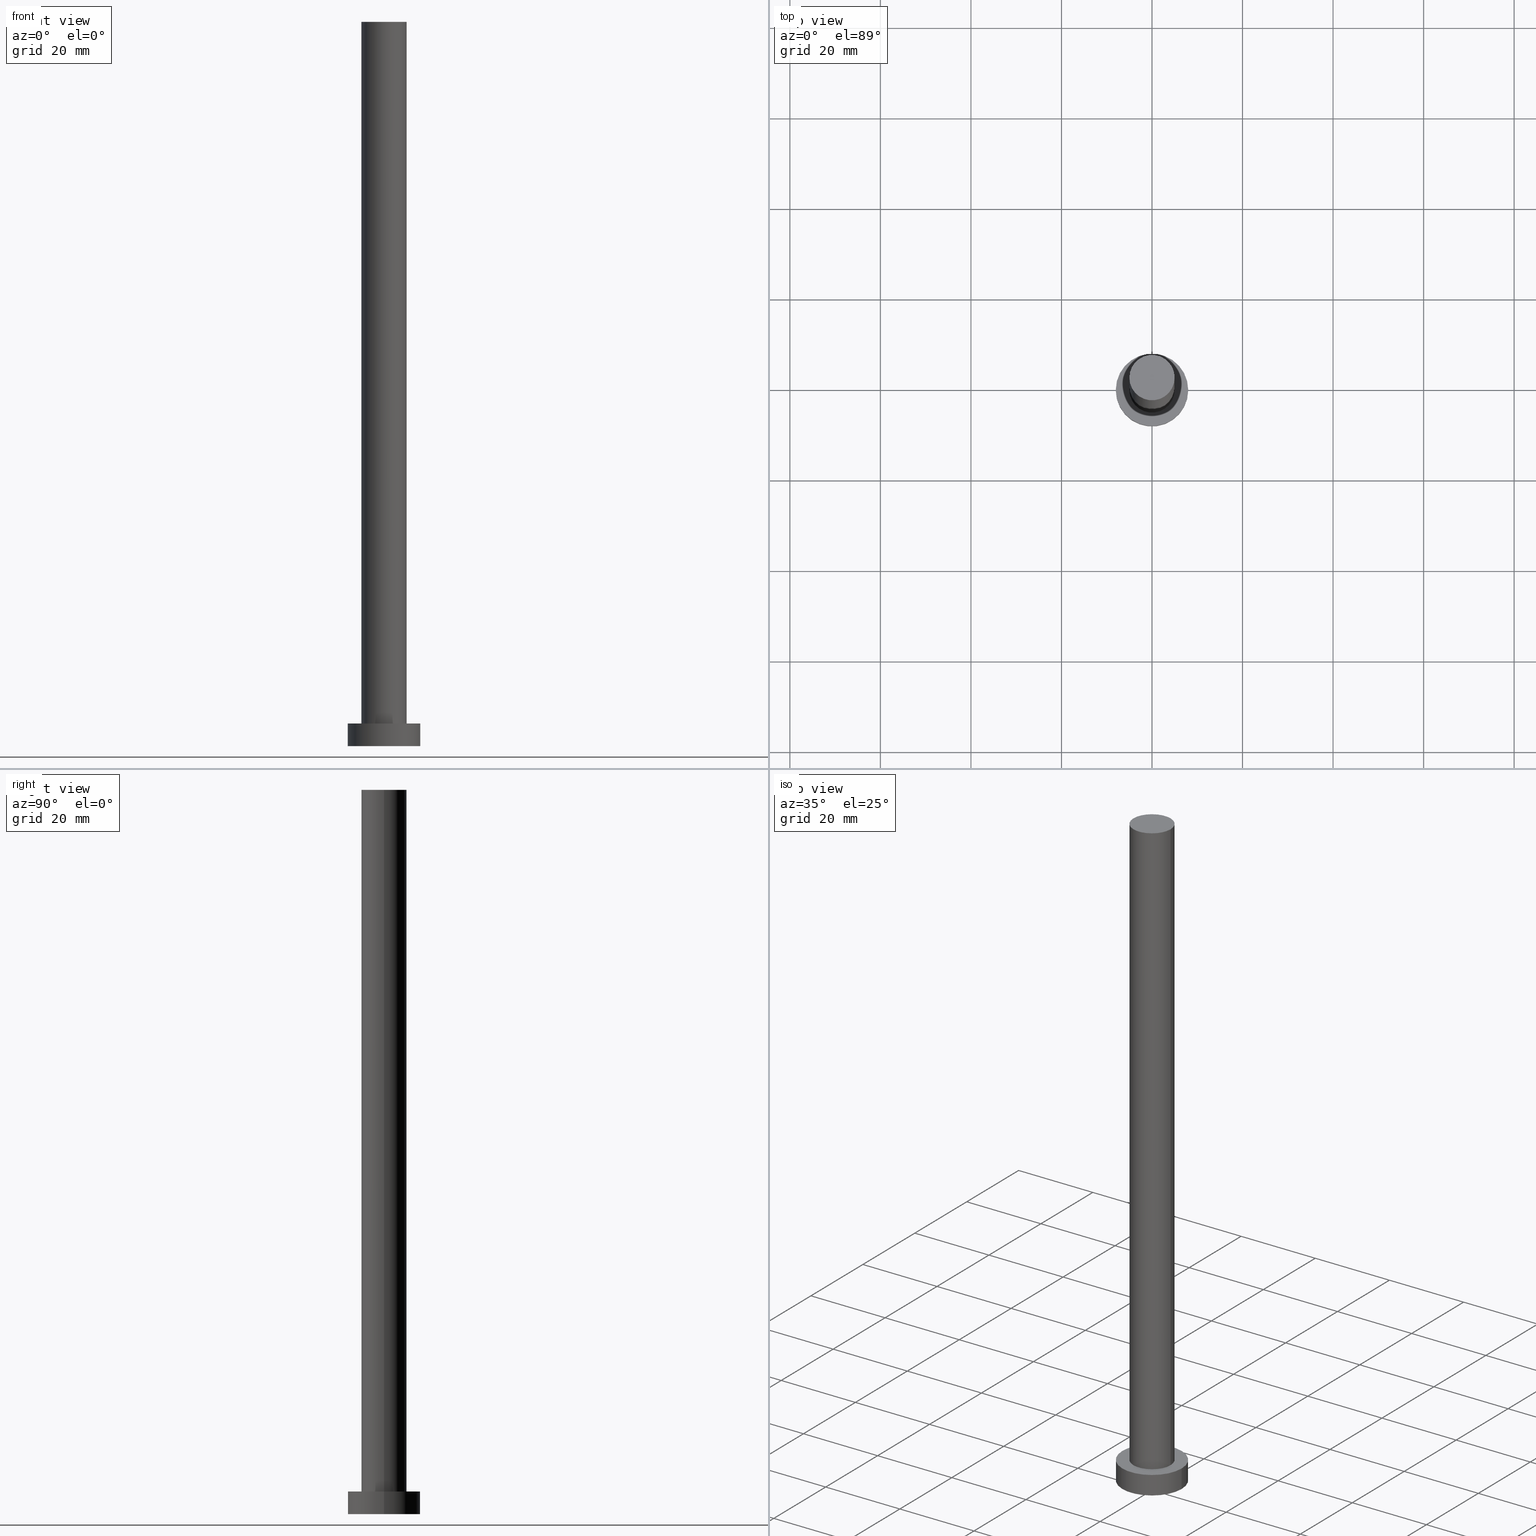
[diagram: canonical four-view strip — front | top / right | iso, engineering-drawing reading convention]
A machine part, canonical four-view strip (front | top / right | iso — engineering-drawing reading convention). The complete STEP part file that produces these views, byte-faithful:
ISO-10303-21;
HEADER;
FILE_DESCRIPTION (( 'STEP AP203' ),
    '1' );
FILE_NAME ('e284.STEP',
    '2023-02-12T11:01:05',
    ( '' ),
    ( '' ),
    'SwSTEP 2.0',
    'SolidWorks 2019',
    '' );
FILE_SCHEMA (( 'CONFIG_CONTROL_DESIGN' ));
ENDSEC;

DATA;
#1 = CC_DESIGN_PERSON_AND_ORGANIZATION_ASSIGNMENT ( #224, #116, ( #194 ) ) ;
#2 = PRODUCT ( 'e284', 'e284', '', ( #5 ) ) ;
#3 = VERTEX_POINT ( 'NONE', #101 ) ;
#4 = CARTESIAN_POINT ( 'NONE',  ( 5.000000000000000000, 6.123233995736766282E-16, 160.0000000000000000 ) ) ;
#5 = MECHANICAL_CONTEXT ( 'NONE', #144, 'mechanical' ) ;
#6 = CC_DESIGN_SECURITY_CLASSIFICATION ( #210, ( #194 ) ) ;
#7 = FACE_OUTER_BOUND ( 'NONE', #87, .T. ) ;
#8 = DIRECTION ( 'NONE',  ( 1.000000000000000000, 0.000000000000000000, -0.000000000000000000 ) ) ;
#9 = DIRECTION ( 'NONE',  ( 1.000000000000000000, 0.000000000000000000, 0.000000000000000000 ) ) ;
#10 = VERTEX_POINT ( 'NONE', #50 ) ;
#11 = CARTESIAN_POINT ( 'NONE',  ( 5.000000000000000000, 6.123233995736766282E-16, 5.000000000000000000 ) ) ;
#12 = DIRECTION ( 'NONE',  ( 0.000000000000000000, 0.000000000000000000, 1.000000000000000000 ) ) ;
#13 = EDGE_CURVE ( 'NONE', #59, #198, #152, .T. ) ;
#14 = DATE_AND_TIME ( #115, #120 ) ;
#15 = PERSON_AND_ORGANIZATION ( #203, #17 ) ;
#16 = PERSON_AND_ORGANIZATION_ROLE ( 'creator' ) ;
#17 = ORGANIZATION ( 'NEUR�EN�', 'NEUR�EN�', '' ) ;
#18 = ORIENTED_EDGE ( 'NONE', *, *, #166, .F. ) ;
#19 = CARTESIAN_POINT ( 'NONE',  ( 0.000000000000000000, 0.000000000000000000, 5.000000000000000000 ) ) ;
#20 = CIRCLE ( 'NONE', #96, 8.000000000000000000 ) ;
#21 = DIRECTION ( 'NONE',  ( 1.000000000000000000, 0.000000000000000000, 0.000000000000000000 ) ) ;
#22 = ORIENTED_EDGE ( 'NONE', *, *, #159, .F. ) ;
#23 = CIRCLE ( 'NONE', #64, 5.000000000000000000 ) ;
#24 = CYLINDRICAL_SURFACE ( 'NONE', #70, 8.000000000000000000 ) ;
#25 = FACE_OUTER_BOUND ( 'NONE', #80, .T. ) ;
#26 = DIRECTION ( 'NONE',  ( 0.000000000000000000, 0.000000000000000000, 1.000000000000000000 ) ) ;
#27 = CARTESIAN_POINT ( 'NONE',  ( 0.000000000000000000, 0.000000000000000000, 0.000000000000000000 ) ) ;
#28 = VECTOR ( 'NONE', #148, 1000.000000000000000 ) ;
#29 =( NAMED_UNIT ( * ) PLANE_ANGLE_UNIT ( ) SI_UNIT ( $, .RADIAN. ) );
#30 = COORDINATED_UNIVERSAL_TIME_OFFSET ( 1, 0, .AHEAD. ) ;
#31 = EDGE_CURVE ( 'NONE', #109, #10, #209, .T. ) ;
#32 = CARTESIAN_POINT ( 'NONE',  ( 0.000000000000000000, 0.000000000000000000, 160.0000000000000000 ) ) ;
#33 = DIRECTION ( 'NONE',  ( 0.000000000000000000, 0.000000000000000000, 1.000000000000000000 ) ) ;
#34 = DIRECTION ( 'NONE',  ( -1.000000000000000000, 0.000000000000000000, 0.000000000000000000 ) ) ;
#35 = ORIENTED_EDGE ( 'NONE', *, *, #58, .T. ) ;
#36 = APPROVAL_STATUS ( 'not_yet_approved' ) ;
#37 = ORIENTED_EDGE ( 'NONE', *, *, #159, .T. ) ;
#38 = AXIS2_PLACEMENT_3D ( 'NONE', #238, #12, #160 ) ;
#39 = AXIS2_PLACEMENT_3D ( 'NONE', #234, #128, #111 ) ;
#40 = APPROVAL_ROLE ( '' ) ;
#41 = ORIENTED_EDGE ( 'NONE', *, *, #62, .T. ) ;
#42 = PERSON_AND_ORGANIZATION ( #203, #17 ) ;
#43 = AXIS2_PLACEMENT_3D ( 'NONE', #32, #249, #200 ) ;
#44 = ADVANCED_FACE ( 'NONE', ( #7 ), #211, .T. ) ;
#45 = FACE_OUTER_BOUND ( 'NONE', #139, .T. ) ;
#46 = CC_DESIGN_APPROVAL ( #105, ( #150 ) ) ;
#47 = LINE ( 'NONE', #97, #49 ) ;
#48 = CARTESIAN_POINT ( 'NONE',  ( 0.000000000000000000, 0.000000000000000000, 5.000000000000000000 ) ) ;
#49 = VECTOR ( 'NONE', #66, 1000.000000000000000 ) ;
#50 = CARTESIAN_POINT ( 'NONE',  ( 8.000000000000000000, 9.797174393178825657E-16, 0.000000000000000000 ) ) ;
#51 = ORIENTED_EDGE ( 'NONE', *, *, #241, .F. ) ;
#52 = DIRECTION ( 'NONE',  ( 1.000000000000000000, 0.000000000000000000, 0.000000000000000000 ) ) ;
#53 = COORDINATED_UNIVERSAL_TIME_OFFSET ( 1, 0, .AHEAD. ) ;
#54 = DIRECTION ( 'NONE',  ( 1.000000000000000000, 0.000000000000000000, 0.000000000000000000 ) ) ;
#55 = PERSON_AND_ORGANIZATION ( #203, #17 ) ;
#56 = LOCAL_TIME ( 12, 1, 5.000000000000000000, #53 ) ;
#57 = ORIENTED_EDGE ( 'NONE', *, *, #131, .F. ) ;
#58 = EDGE_CURVE ( 'NONE', #198, #59, #122, .T. ) ;
#59 = VERTEX_POINT ( 'NONE', #77 ) ;
#60 = VECTOR ( 'NONE', #226, 1000.000000000000000 ) ;
#61 = DATE_AND_TIME ( #79, #117 ) ;
#62 = EDGE_CURVE ( 'NONE', #109, #78, #186, .T. ) ;
#63 = DESIGN_CONTEXT ( 'detailed design', #232, 'design' ) ;
#64 = AXIS2_PLACEMENT_3D ( 'NONE', #48, #185, #21 ) ;
#65 = CC_DESIGN_PERSON_AND_ORGANIZATION_ASSIGNMENT ( #42, #205, ( #194 ) ) ;
#66 = DIRECTION ( 'NONE',  ( -0.000000000000000000, -0.000000000000000000, -1.000000000000000000 ) ) ;
#67 = ORIENTED_EDGE ( 'NONE', *, *, #31, .F. ) ;
#68 = ORIENTED_EDGE ( 'NONE', *, *, #181, .F. ) ;
#69 = DIRECTION ( 'NONE',  ( 0.000000000000000000, 0.000000000000000000, 1.000000000000000000 ) ) ;
#70 = AXIS2_PLACEMENT_3D ( 'NONE', #19, #85, #243 ) ;
#71 = DIRECTION ( 'NONE',  ( -1.000000000000000000, 0.000000000000000000, 0.000000000000000000 ) ) ;
#72 = VECTOR ( 'NONE', #173, 1000.000000000000000 ) ;
#73 = DIRECTION ( 'NONE',  ( 0.000000000000000000, 0.000000000000000000, 1.000000000000000000 ) ) ;
#74 = AXIS2_PLACEMENT_3D ( 'NONE', #239, #33, #140 ) ;
#75 = PERSON_AND_ORGANIZATION ( #203, #17 ) ;
#76 = APPROVAL_PERSON_ORGANIZATION ( #221, #105, #40 ) ;
#77 = CARTESIAN_POINT ( 'NONE',  ( -5.000000000000000000, 0.000000000000000000, 160.0000000000000000 ) ) ;
#78 = VERTEX_POINT ( 'NONE', #138 ) ;
#79 = CALENDAR_DATE ( 2023, 12, 2 ) ;
#80 = EDGE_LOOP ( 'NONE', ( #89, #217, #202, #123 ) ) ;
#81 = AXIS2_PLACEMENT_3D ( 'NONE', #27, #156, #233 ) ;
#82 = APPROVAL ( #36, 'NEUR�EN�' ) ;
#83 = CARTESIAN_POINT ( 'NONE',  ( 0.000000000000000000, 0.000000000000000000, 160.0000000000000000 ) ) ;
#84 = CARTESIAN_POINT ( 'NONE',  ( 0.000000000000000000, 0.000000000000000000, 5.000000000000000000 ) ) ;
#85 = DIRECTION ( 'NONE',  ( -0.000000000000000000, -0.000000000000000000, -1.000000000000000000 ) ) ;
#86 = CARTESIAN_POINT ( 'NONE',  ( -5.000000000000000000, 0.000000000000000000, 5.000000000000000000 ) ) ;
#87 = EDGE_LOOP ( 'NONE', ( #157, #172, #133, #68 ) ) ;
#88 = COORDINATED_UNIVERSAL_TIME_OFFSET ( 1, 0, .AHEAD. ) ;
#89 = ORIENTED_EDGE ( 'NONE', *, *, #175, .F. ) ;
#90 = PERSON_AND_ORGANIZATION ( #203, #17 ) ;
#91 = ADVANCED_FACE ( 'NONE', ( #25 ), #106, .T. ) ;
#92 = DIRECTION ( 'NONE',  ( -0.000000000000000000, -0.000000000000000000, -1.000000000000000000 ) ) ;
#93 = EDGE_LOOP ( 'NONE', ( #146, #35 ) ) ;
#94 = COORDINATED_UNIVERSAL_TIME_OFFSET ( 1, 0, .AHEAD. ) ;
#95 = LINE ( 'NONE', #4, #60 ) ;
#96 = AXIS2_PLACEMENT_3D ( 'NONE', #250, #69, #52 ) ;
#97 = CARTESIAN_POINT ( 'NONE',  ( -5.000000000000000000, 0.000000000000000000, 160.0000000000000000 ) ) ;
#98 = CC_DESIGN_PERSON_AND_ORGANIZATION_ASSIGNMENT ( #55, #16, ( #150 ) ) ;
#99 = ADVANCED_BREP_SHAPE_REPRESENTATION ( 'e284', ( #201, #74 ), #231 ) ;
#100 = CARTESIAN_POINT ( 'NONE',  ( 8.000000000000000000, 9.797174393178825657E-16, 5.000000000000000000 ) ) ;
#101 = CARTESIAN_POINT ( 'NONE',  ( -8.000000000000000000, 0.000000000000000000, 0.000000000000000000 ) ) ;
#102 = CARTESIAN_POINT ( 'NONE',  ( 0.000000000000000000, 0.000000000000000000, 160.0000000000000000 ) ) ;
#103 =( LENGTH_UNIT ( ) NAMED_UNIT ( * ) SI_UNIT ( .MILLI., .METRE. ) );
#104 = AXIS2_PLACEMENT_3D ( 'NONE', #245, #189, #247 ) ;
#105 = APPROVAL ( #223, 'NEUR�EN�' ) ;
#106 = CYLINDRICAL_SURFACE ( 'NONE', #39, 5.000000000000000000 ) ;
#107 = DIRECTION ( 'NONE',  ( 1.000000000000000000, 0.000000000000000000, -0.000000000000000000 ) ) ;
#108 = CARTESIAN_POINT ( 'NONE',  ( -8.000000000000000000, 0.000000000000000000, 5.000000000000000000 ) ) ;
#109 = VERTEX_POINT ( 'NONE', #188 ) ;
#110 = CALENDAR_DATE ( 2023, 12, 2 ) ;
#111 = DIRECTION ( 'NONE',  ( -1.000000000000000000, 0.000000000000000000, 0.000000000000000000 ) ) ;
#112 = APPLICATION_PROTOCOL_DEFINITION ( 'international standard', 'config_control_design', 1994, #232 ) ;
#113 = ORIENTED_EDGE ( 'NONE', *, *, #228, .F. ) ;
#114 = EDGE_LOOP ( 'NONE', ( #67, #51, #37, #137 ) ) ;
#115 = CALENDAR_DATE ( 2023, 12, 2 ) ;
#116 = PERSON_AND_ORGANIZATION_ROLE ( 'creator' ) ;
#117 = LOCAL_TIME ( 12, 1, 5.000000000000000000, #165 ) ;
#118 = APPROVAL_DATE_TIME ( #61, #184 ) ;
#119 = DIRECTION ( 'NONE',  ( 0.000000000000000000, 0.000000000000000000, 1.000000000000000000 ) ) ;
#120 = LOCAL_TIME ( 12, 1, 5.000000000000000000, #88 ) ;
#121 = CARTESIAN_POINT ( 'NONE',  ( 0.000000000000000000, 0.000000000000000000, 5.000000000000000000 ) ) ;
#122 = CIRCLE ( 'NONE', #43, 5.000000000000000000 ) ;
#123 = ORIENTED_EDGE ( 'NONE', *, *, #187, .T. ) ;
#124 = CC_DESIGN_DATE_AND_TIME_ASSIGNMENT ( #177, #251, ( #150 ) ) ;
#125 = ORIENTED_EDGE ( 'NONE', *, *, #187, .F. ) ;
#126 = EDGE_LOOP ( 'NONE', ( #125, #57 ) ) ;
#127 = AXIS2_PLACEMENT_3D ( 'NONE', #121, #26, #107 ) ;
#128 = DIRECTION ( 'NONE',  ( -0.000000000000000000, -0.000000000000000000, -1.000000000000000000 ) ) ;
#129 = APPROVAL_DATE_TIME ( #141, #82 ) ;
#130 = FACE_OUTER_BOUND ( 'NONE', #114, .T. ) ;
#131 = EDGE_CURVE ( 'NONE', #154, #161, #213, .T. ) ;
#132 = DIRECTION ( 'NONE',  ( 0.000000000000000000, 0.000000000000000000, 1.000000000000000000 ) ) ;
#133 = ORIENTED_EDGE ( 'NONE', *, *, #131, .T. ) ;
#134 = AXIS2_PLACEMENT_3D ( 'NONE', #102, #73, #8 ) ;
#135 = APPLICATION_PROTOCOL_DEFINITION ( 'international standard', 'config_control_design', 1994, #144 ) ;
#136 = CALENDAR_DATE ( 2023, 12, 2 ) ;
#137 = ORIENTED_EDGE ( 'NONE', *, *, #228, .T. ) ;
#138 = CARTESIAN_POINT ( 'NONE',  ( -8.000000000000000000, 0.000000000000000000, 5.000000000000000000 ) ) ;
#139 = EDGE_LOOP ( 'NONE', ( #191, #254, #169, #22 ) ) ;
#140 = DIRECTION ( 'NONE',  ( 1.000000000000000000, 0.000000000000000000, 0.000000000000000000 ) ) ;
#141 = DATE_AND_TIME ( #163, #215 ) ;
#142 = APPROVAL_STATUS ( 'not_yet_approved' ) ;
#143 = CC_DESIGN_APPROVAL ( #184, ( #210 ) ) ;
#144 = APPLICATION_CONTEXT ( 'configuration controlled 3d designs of mechanical parts and assemblies' ) ;
#145 = CC_DESIGN_APPROVAL ( #82, ( #194 ) ) ;
#146 = ORIENTED_EDGE ( 'NONE', *, *, #13, .T. ) ;
#147 = DIRECTION ( 'NONE',  ( 0.000000000000000000, 0.000000000000000000, 1.000000000000000000 ) ) ;
#148 = DIRECTION ( 'NONE',  ( -0.000000000000000000, -0.000000000000000000, -1.000000000000000000 ) ) ;
#149 = PLANE ( 'NONE',  #134 ) ;
#150 = PRODUCT_DEFINITION ( 'NEZN�M�', '', #194, #63 ) ;
#151 = FACE_BOUND ( 'NONE', #126, .T. ) ;
#152 = CIRCLE ( 'NONE', #190, 5.000000000000000000 ) ;
#153 = CARTESIAN_POINT ( 'NONE',  ( 0.000000000000000000, 0.000000000000000000, 5.000000000000000000 ) ) ;
#154 = VERTEX_POINT ( 'NONE', #11 ) ;
#155 = PERSON_AND_ORGANIZATION ( #203, #17 ) ;
#156 = DIRECTION ( 'NONE',  ( 0.000000000000000000, 0.000000000000000000, 1.000000000000000000 ) ) ;
#157 = ORIENTED_EDGE ( 'NONE', *, *, #58, .F. ) ;
#158 = PERSON_AND_ORGANIZATION_ROLE ( 'design_owner' ) ;
#159 = EDGE_CURVE ( 'NONE', #78, #3, #197, .T. ) ;
#160 = DIRECTION ( 'NONE',  ( 1.000000000000000000, 0.000000000000000000, 0.000000000000000000 ) ) ;
#161 = VERTEX_POINT ( 'NONE', #86 ) ;
#162 = CC_DESIGN_PERSON_AND_ORGANIZATION_ASSIGNMENT ( #15, #158, ( #2 ) ) ;
#163 = CALENDAR_DATE ( 2023, 12, 2 ) ;
#164 = AXIS2_PLACEMENT_3D ( 'NONE', #83, #246, #71 ) ;
#165 = COORDINATED_UNIVERSAL_TIME_OFFSET ( 1, 0, .AHEAD. ) ;
#166 = EDGE_CURVE ( 'NONE', #10, #3, #248, .T. ) ;
#167 = FACE_OUTER_BOUND ( 'NONE', #219, .T. ) ;
#168 = CIRCLE ( 'NONE', #104, 8.000000000000000000 ) ;
#169 = ORIENTED_EDGE ( 'NONE', *, *, #166, .T. ) ;
#170 = ADVANCED_FACE ( 'NONE', ( #130 ), #195, .T. ) ;
#171 = FACE_OUTER_BOUND ( 'NONE', #93, .T. ) ;
#172 = ORIENTED_EDGE ( 'NONE', *, *, #175, .T. ) ;
#173 = DIRECTION ( 'NONE',  ( -0.000000000000000000, -0.000000000000000000, -1.000000000000000000 ) ) ;
#174 = EDGE_LOOP ( 'NONE', ( #235, #41 ) ) ;
#175 = EDGE_CURVE ( 'NONE', #198, #154, #95, .T. ) ;
#176 = SECURITY_CLASSIFICATION_LEVEL ( 'unclassified' ) ;
#177 = DATE_AND_TIME ( #136, #196 ) ;
#178 = APPROVAL_PERSON_ORGANIZATION ( #90, #82, #179 ) ;
#179 = APPROVAL_ROLE ( '' ) ;
#180 = AXIS2_PLACEMENT_3D ( 'NONE', #84, #92, #34 ) ;
#181 = EDGE_CURVE ( 'NONE', #59, #161, #47, .T. ) ;
#182 = CLOSED_SHELL ( 'NONE', ( #44, #222, #170, #244, #207, #91, #237 ) ) ;
#183 = CARTESIAN_POINT ( 'NONE',  ( 5.000000000000000000, 6.123233995736766282E-16, 160.0000000000000000 ) ) ;
#184 = APPROVAL ( #142, 'NEUR�EN�' ) ;
#185 = DIRECTION ( 'NONE',  ( 0.000000000000000000, 0.000000000000000000, 1.000000000000000000 ) ) ;
#186 = CIRCLE ( 'NONE', #38, 8.000000000000000000 ) ;
#187 = EDGE_CURVE ( 'NONE', #161, #154, #23, .T. ) ;
#188 = CARTESIAN_POINT ( 'NONE',  ( 8.000000000000000000, 9.797174393178825657E-16, 5.000000000000000000 ) ) ;
#189 = DIRECTION ( 'NONE',  ( 0.000000000000000000, 0.000000000000000000, 1.000000000000000000 ) ) ;
#190 = AXIS2_PLACEMENT_3D ( 'NONE', #229, #119, #9 ) ;
#191 = ORIENTED_EDGE ( 'NONE', *, *, #62, .F. ) ;
#192 =( NAMED_UNIT ( * ) SI_UNIT ( $, .STERADIAN. ) SOLID_ANGLE_UNIT ( ) );
#193 = DATE_AND_TIME ( #110, #56 ) ;
#194 = PRODUCT_DEFINITION_FORMATION_WITH_SPECIFIED_SOURCE ( 'LIBOVOLN�', '', #2, .NOT_KNOWN. ) ;
#195 = CYLINDRICAL_SURFACE ( 'NONE', #180, 8.000000000000000000 ) ;
#196 = LOCAL_TIME ( 12, 1, 5.000000000000000000, #94 ) ;
#197 = LINE ( 'NONE', #108, #72 ) ;
#198 = VERTEX_POINT ( 'NONE', #183 ) ;
#199 = PRODUCT_DEFINITION_SHAPE ( 'NONE', 'NONE',  #150 ) ;
#200 = DIRECTION ( 'NONE',  ( 1.000000000000000000, 0.000000000000000000, 0.000000000000000000 ) ) ;
#201 = MANIFOLD_SOLID_BREP ( 'P�idat vysunut�m3', #182 ) ;
#202 = ORIENTED_EDGE ( 'NONE', *, *, #181, .T. ) ;
#203 = PERSON ( 'NEUR�EN�', 'NEUR�EN�', 'NEUR�EN�', ('NEUR�EN�'), ('NEUR�EN�'), ('NEUR�EN�') ) ;
#204 = APPROVAL_DATE_TIME ( #14, #105 ) ;
#205 = PERSON_AND_ORGANIZATION_ROLE ( 'design_supplier' ) ;
#206 = SHAPE_DEFINITION_REPRESENTATION ( #199, #99 ) ;
#207 = ADVANCED_FACE ( 'NONE', ( #167 ), #242, .F. ) ;
#208 = APPROVAL_ROLE ( '' ) ;
#209 = LINE ( 'NONE', #100, #28 ) ;
#210 = SECURITY_CLASSIFICATION ( '', '', #176 ) ;
#211 = CYLINDRICAL_SURFACE ( 'NONE', #164, 5.000000000000000000 ) ;
#212 = CC_DESIGN_DATE_AND_TIME_ASSIGNMENT ( #193, #253, ( #210 ) ) ;
#213 = CIRCLE ( 'NONE', #255, 5.000000000000000000 ) ;
#214 = FACE_OUTER_BOUND ( 'NONE', #174, .T. ) ;
#215 = LOCAL_TIME ( 12, 1, 5.000000000000000000, #30 ) ;
#216 = PLANE ( 'NONE',  #127 ) ;
#217 = ORIENTED_EDGE ( 'NONE', *, *, #13, .F. ) ;
#218 = PERSON_AND_ORGANIZATION_ROLE ( 'classification_officer' ) ;
#219 = EDGE_LOOP ( 'NONE', ( #113, #18 ) ) ;
#220 = AXIS2_PLACEMENT_3D ( 'NONE', #225, #147, #227 ) ;
#221 = PERSON_AND_ORGANIZATION ( #203, #17 ) ;
#222 = ADVANCED_FACE ( 'NONE', ( #45 ), #24, .T. ) ;
#223 = APPROVAL_STATUS ( 'not_yet_approved' ) ;
#224 = PERSON_AND_ORGANIZATION ( #203, #17 ) ;
#225 = CARTESIAN_POINT ( 'NONE',  ( 0.000000000000000000, 0.000000000000000000, 0.000000000000000000 ) ) ;
#226 = DIRECTION ( 'NONE',  ( -0.000000000000000000, -0.000000000000000000, -1.000000000000000000 ) ) ;
#227 = DIRECTION ( 'NONE',  ( 1.000000000000000000, 0.000000000000000000, -0.000000000000000000 ) ) ;
#228 = EDGE_CURVE ( 'NONE', #3, #10, #20, .T. ) ;
#229 = CARTESIAN_POINT ( 'NONE',  ( 0.000000000000000000, 0.000000000000000000, 160.0000000000000000 ) ) ;
#230 = CC_DESIGN_PERSON_AND_ORGANIZATION_ASSIGNMENT ( #155, #218, ( #210 ) ) ;
#231 =( GEOMETRIC_REPRESENTATION_CONTEXT ( 3 ) GLOBAL_UNCERTAINTY_ASSIGNED_CONTEXT ( ( #236 ) ) GLOBAL_UNIT_ASSIGNED_CONTEXT ( ( #103, #29, #192 ) ) REPRESENTATION_CONTEXT ( 'NONE', 'WORKASPACE' ) );
#232 = APPLICATION_CONTEXT ( 'configuration controlled 3d designs of mechanical parts and assemblies' ) ;
#233 = DIRECTION ( 'NONE',  ( 1.000000000000000000, 0.000000000000000000, 0.000000000000000000 ) ) ;
#234 = CARTESIAN_POINT ( 'NONE',  ( 0.000000000000000000, 0.000000000000000000, 160.0000000000000000 ) ) ;
#235 = ORIENTED_EDGE ( 'NONE', *, *, #241, .T. ) ;
#236 = UNCERTAINTY_MEASURE_WITH_UNIT (LENGTH_MEASURE( 1.000000000000000082E-05 ), #103, 'distance_accuracy_value', 'NONE');
#237 = ADVANCED_FACE ( 'NONE', ( #171 ), #149, .T. ) ;
#238 = CARTESIAN_POINT ( 'NONE',  ( 0.000000000000000000, 0.000000000000000000, 5.000000000000000000 ) ) ;
#239 = CARTESIAN_POINT ( 'NONE',  ( 0.000000000000000000, 0.000000000000000000, 0.000000000000000000 ) ) ;
#240 = PRODUCT_RELATED_PRODUCT_CATEGORY ( 'detail', '', ( #2 ) ) ;
#241 = EDGE_CURVE ( 'NONE', #78, #109, #168, .T. ) ;
#242 = PLANE ( 'NONE',  #220 ) ;
#243 = DIRECTION ( 'NONE',  ( -1.000000000000000000, 0.000000000000000000, 0.000000000000000000 ) ) ;
#244 = ADVANCED_FACE ( 'NONE', ( #151, #214 ), #216, .T. ) ;
#245 = CARTESIAN_POINT ( 'NONE',  ( 0.000000000000000000, 0.000000000000000000, 5.000000000000000000 ) ) ;
#246 = DIRECTION ( 'NONE',  ( -0.000000000000000000, -0.000000000000000000, -1.000000000000000000 ) ) ;
#247 = DIRECTION ( 'NONE',  ( 1.000000000000000000, 0.000000000000000000, 0.000000000000000000 ) ) ;
#248 = CIRCLE ( 'NONE', #81, 8.000000000000000000 ) ;
#249 = DIRECTION ( 'NONE',  ( 0.000000000000000000, 0.000000000000000000, 1.000000000000000000 ) ) ;
#250 = CARTESIAN_POINT ( 'NONE',  ( 0.000000000000000000, 0.000000000000000000, 0.000000000000000000 ) ) ;
#251 = DATE_TIME_ROLE ( 'creation_date' ) ;
#252 = APPROVAL_PERSON_ORGANIZATION ( #75, #184, #208 ) ;
#253 = DATE_TIME_ROLE ( 'classification_date' ) ;
#254 = ORIENTED_EDGE ( 'NONE', *, *, #31, .T. ) ;
#255 = AXIS2_PLACEMENT_3D ( 'NONE', #153, #132, #54 ) ;
ENDSEC;
END-ISO-10303-21;
